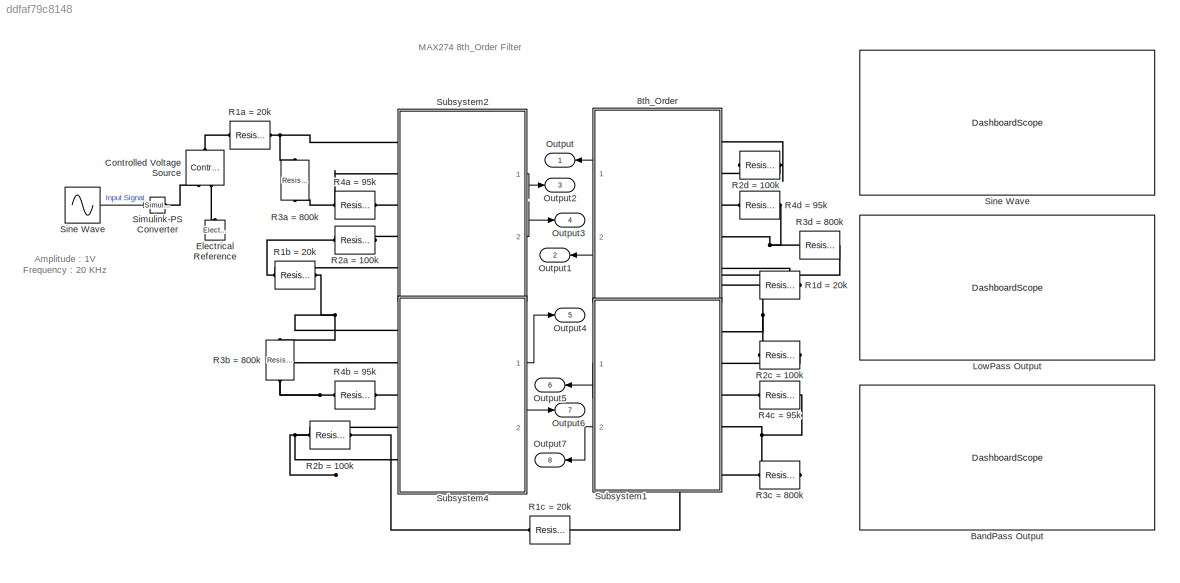
MODEL slx_ddfaf79c8148
KIND model
CONFIG AbsTol = auto
CONFIG EnableMultiTasking = off
CONFIG FixedStep = auto
CONFIG MaxStep = auto
CONFIG MinStep = auto
CONFIG RelTol = 1e-3
CONFIG SampleTimeConstraint = Unconstrained
CONFIG Solver = VariableStepAuto
CONFIG SolverName = VariableStepAuto
CONFIG StartTime = 0.0
CONFIG StopTime = 0.01
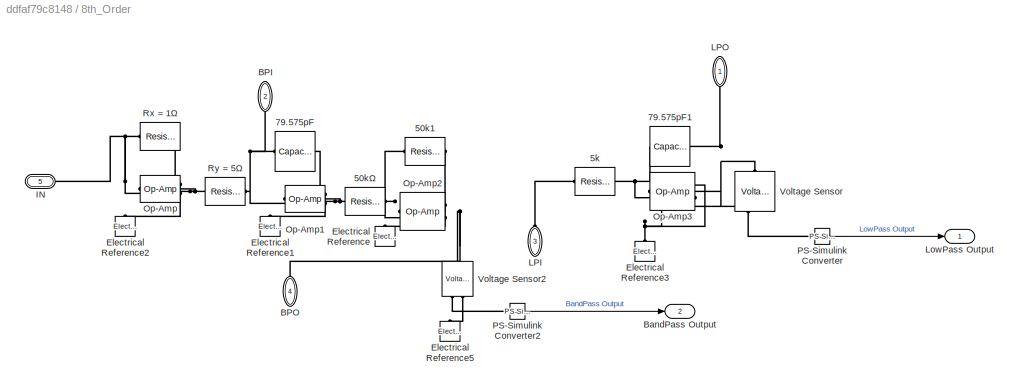
BLOCK [SubSystem] 8th_Order
  Ports = [0, 2, 0, 0, 0, 5]
  RequestExecContextInheritance = off
BLOCK [Reference] 8th_Order/50k1  REF=elec_lib/Passive Devices/Resistor
  Ports = [0, 0, 0, 0, 0, 1, 1]
  SourceBlock = elec_lib/Passive Devices/Resistor
  SourceProductBaseCode = SN
  SourceProductName = Simscape Electronics
  SourceType = Resistor
BLOCK [Reference] 8th_Order/50kΩ  REF=elec_lib/Passive Devices/Resistor
  Ports = [0, 0, 0, 0, 0, 1, 1]
  SourceBlock = elec_lib/Passive Devices/Resistor
  SourceProductBaseCode = SN
  SourceProductName = Simscape Electronics
  SourceType = Resistor
BLOCK [Reference] 8th_Order/5k  REF=elec_lib/Passive Devices/Resistor
  Ports = [0, 0, 0, 0, 0, 1, 1]
  SourceBlock = elec_lib/Passive Devices/Resistor
  SourceProductBaseCode = SN
  SourceProductName = Simscape Electronics
  SourceType = Resistor
BLOCK [Reference] 8th_Order/79.575pF  REF=elec_lib/Passive Devices/Capacitor
  Ports = [0, 0, 0, 0, 0, 1, 1]
  SourceBlock = elec_lib/Passive Devices/Capacitor
  SourceProductBaseCode = SN
  SourceProductName = Simscape Electronics
  SourceType = Capacitor
BLOCK [Reference] 8th_Order/79.575pF1  REF=elec_lib/Passive Devices/Capacitor
  Ports = [0, 0, 0, 0, 0, 1, 1]
  SourceBlock = elec_lib/Passive Devices/Capacitor
  SourceProductBaseCode = SN
  SourceProductName = Simscape Electronics
  SourceType = Capacitor
BLOCK [PMIOPort] 8th_Order/BPI
  Port = 2
  Side = Left
BLOCK [PMIOPort] 8th_Order/BPO
  Port = 4
  Side = Left
BLOCK [Outport] 8th_Order/BandPass Output
  IconDisplay = Port number
  Port = 2
BLOCK [Reference] 8th_Order/Electrical Reference  REF=fl_lib/Electrical/Electrical Elements/Electrical Reference
  Ports = [0, 0, 0, 0, 0, 1]
  SourceBlock = fl_lib/Electrical/Electrical Elements/Electrical Reference
  SourceProductBaseCode = SS
  SourceProductName = Simscape
  SourceType = Electrical Reference
BLOCK [Reference] 8th_Order/Electrical Reference1  REF=fl_lib/Electrical/Electrical Elements/Electrical Reference
  Ports = [0, 0, 0, 0, 0, 1]
  SourceBlock = fl_lib/Electrical/Electrical Elements/Electrical Reference
  SourceProductBaseCode = SS
  SourceProductName = Simscape
  SourceType = Electrical Reference
BLOCK [Reference] 8th_Order/Electrical Reference2  REF=fl_lib/Electrical/Electrical Elements/Electrical Reference
  Ports = [0, 0, 0, 0, 0, 1]
  SourceBlock = fl_lib/Electrical/Electrical Elements/Electrical Reference
  SourceProductBaseCode = SS
  SourceProductName = Simscape
  SourceType = Electrical Reference
BLOCK [Reference] 8th_Order/Electrical Reference3  REF=fl_lib/Electrical/Electrical Elements/Electrical Reference
  Ports = [0, 0, 0, 0, 0, 1]
  SourceBlock = fl_lib/Electrical/Electrical Elements/Electrical Reference
  SourceProductBaseCode = SS
  SourceProductName = Simscape
  SourceType = Electrical Reference
BLOCK [Reference] 8th_Order/Electrical Reference5  REF=fl_lib/Electrical/Electrical Elements/Electrical Reference
  Ports = [0, 0, 0, 0, 0, 1]
  SourceBlock = fl_lib/Electrical/Electrical Elements/Electrical Reference
  SourceProductBaseCode = SS
  SourceProductName = Simscape
  SourceType = Electrical Reference
BLOCK [PMIOPort] 8th_Order/IN
  Port = 5
  Side = Left
BLOCK [PMIOPort] 8th_Order/LPI
  Port = 3
  Side = Left
BLOCK [PMIOPort] 8th_Order/LPO
  Side = Left
BLOCK [Outport] 8th_Order/LowPass Output
  IconDisplay = Port number
BLOCK [Reference] 8th_Order/Op-Amp  REF=fl_lib/Electrical/Electrical Elements/Op-Amp
  Ports = [0, 0, 0, 0, 0, 2, 1]
  SourceBlock = fl_lib/Electrical/Electrical Elements/Op-Amp
  SourceProductBaseCode = SS
  SourceProductName = Simscape
  SourceType = Op-Amp
BLOCK [Reference] 8th_Order/Op-Amp1  REF=fl_lib/Electrical/Electrical Elements/Op-Amp
  Ports = [0, 0, 0, 0, 0, 2, 1]
  SourceBlock = fl_lib/Electrical/Electrical Elements/Op-Amp
  SourceProductBaseCode = SS
  SourceProductName = Simscape
  SourceType = Op-Amp
BLOCK [Reference] 8th_Order/Op-Amp2  REF=fl_lib/Electrical/Electrical Elements/Op-Amp
  Ports = [0, 0, 0, 0, 0, 2, 1]
  SourceBlock = fl_lib/Electrical/Electrical Elements/Op-Amp
  SourceProductBaseCode = SS
  SourceProductName = Simscape
  SourceType = Op-Amp
BLOCK [Reference] 8th_Order/Op-Amp3  REF=fl_lib/Electrical/Electrical Elements/Op-Amp
  Ports = [0, 0, 0, 0, 0, 2, 1]
  SourceBlock = fl_lib/Electrical/Electrical Elements/Op-Amp
  SourceProductBaseCode = SS
  SourceProductName = Simscape
  SourceType = Op-Amp
BLOCK [Reference] 8th_Order/PS-Simulink Converter  REF=nesl_utility/PS-Simulink
Converter
  Ports = [0, 1, 0, 0, 0, 1]
  SourceBlock = nesl_utility/PS-Simulink\nConverter
  SourceProductBaseCode = SS
  SourceProductName = Simscape
  SourceType = PS-Simulink\nConverter
BLOCK [Reference] 8th_Order/PS-Simulink Converter2  REF=nesl_utility/PS-Simulink
Converter
  Ports = [0, 1, 0, 0, 0, 1]
  SourceBlock = nesl_utility/PS-Simulink\nConverter
  SourceProductBaseCode = SS
  SourceProductName = Simscape
  SourceType = PS-Simulink\nConverter
BLOCK [Reference] 8th_Order/Rx = 1Ω  REF=elec_lib/Passive Devices/Resistor
  Ports = [0, 0, 0, 0, 0, 1, 1]
  SourceBlock = elec_lib/Passive Devices/Resistor
  SourceProductBaseCode = SN
  SourceProductName = Simscape Electronics
  SourceType = Resistor
BLOCK [Reference] 8th_Order/Ry = 5Ω  REF=elec_lib/Passive Devices/Resistor
  Ports = [0, 0, 0, 0, 0, 1, 1]
  SourceBlock = elec_lib/Passive Devices/Resistor
  SourceProductBaseCode = SN
  SourceProductName = Simscape Electronics
  SourceType = Resistor
BLOCK [Reference] 8th_Order/Voltage Sensor  REF=fl_lib/Electrical/Electrical Sensors/Voltage Sensor
  Ports = [0, 0, 0, 0, 0, 1, 2]
  SourceBlock = fl_lib/Electrical/Electrical Sensors/Voltage Sensor
  SourceProductBaseCode = SS
  SourceProductName = Simscape
  SourceType = Voltage Sensor
BLOCK [Reference] 8th_Order/Voltage Sensor2  REF=fl_lib/Electrical/Electrical Sensors/Voltage Sensor
  Ports = [0, 0, 0, 0, 0, 1, 2]
  SourceBlock = fl_lib/Electrical/Electrical Sensors/Voltage Sensor
  SourceProductBaseCode = SS
  SourceProductName = Simscape
  SourceType = Voltage Sensor
BLOCK [DashboardScope] BandPass Output
  WebBlockId = 606
BLOCK [Reference] Controlled Voltage Source  REF=fl_lib/Electrical/Electrical Sources/Controlled Voltage
Source
  Ports = [0, 0, 0, 0, 0, 1, 2]
  SourceBlock = fl_lib/Electrical/Electrical Sources/Controlled Voltage\nSource
  SourceProductBaseCode = SS
  SourceProductName = Simscape
  SourceType = Controlled Voltage\nSource
BLOCK [Reference] Electrical Reference  REF=fl_lib/Electrical/Electrical Elements/Electrical Reference
  Ports = [0, 0, 0, 0, 0, 1]
  SourceBlock = fl_lib/Electrical/Electrical Elements/Electrical Reference
  SourceProductBaseCode = SS
  SourceProductName = Simscape
  SourceType = Electrical Reference
BLOCK [DashboardScope] LowPass Output
  WebBlockId = 605
BLOCK [Outport] Output
  IconDisplay = Port number
BLOCK [Outport] Output1
  IconDisplay = Port number
  Port = 2
BLOCK [Outport] Output2
  IconDisplay = Port number
  Port = 3
BLOCK [Outport] Output3
  IconDisplay = Port number
  Port = 4
BLOCK [Outport] Output4
  IconDisplay = Port number
  Port = 5
BLOCK [Outport] Output5
  IconDisplay = Port number
  Port = 6
BLOCK [Outport] Output6
  IconDisplay = Port number
  Port = 7
BLOCK [Outport] Output7
  IconDisplay = Port number
  Port = 8
BLOCK [Reference] R1a = 20k  REF=elec_lib/Passive Devices/Resistor
  Ports = [0, 0, 0, 0, 0, 1, 1]
  SourceBlock = elec_lib/Passive Devices/Resistor
  SourceProductBaseCode = SN
  SourceProductName = Simscape Electronics
  SourceType = Resistor
BLOCK [Reference] R1b = 20k  REF=elec_lib/Passive Devices/Resistor
  Ports = [0, 0, 0, 0, 0, 1, 1]
  SourceBlock = elec_lib/Passive Devices/Resistor
  SourceProductBaseCode = SN
  SourceProductName = Simscape Electronics
  SourceType = Resistor
BLOCK [Reference] R1c = 20k  REF=elec_lib/Passive Devices/Resistor
  Ports = [0, 0, 0, 0, 0, 1, 1]
  SourceBlock = elec_lib/Passive Devices/Resistor
  SourceProductBaseCode = SN
  SourceProductName = Simscape Electronics
  SourceType = Resistor
BLOCK [Reference] R1d = 20k  REF=elec_lib/Passive Devices/Resistor
  Ports = [0, 0, 0, 0, 0, 1, 1]
  SourceBlock = elec_lib/Passive Devices/Resistor
  SourceProductBaseCode = SN
  SourceProductName = Simscape Electronics
  SourceType = Resistor
BLOCK [Reference] R2a = 100k  REF=elec_lib/Passive Devices/Resistor
  Ports = [0, 0, 0, 0, 0, 1, 1]
  SourceBlock = elec_lib/Passive Devices/Resistor
  SourceProductBaseCode = SN
  SourceProductName = Simscape Electronics
  SourceType = Resistor
BLOCK [Reference] R2b = 100k  REF=elec_lib/Passive Devices/Resistor
  Ports = [0, 0, 0, 0, 0, 1, 1]
  SourceBlock = elec_lib/Passive Devices/Resistor
  SourceProductBaseCode = SN
  SourceProductName = Simscape Electronics
  SourceType = Resistor
BLOCK [Reference] R2c = 100k  REF=elec_lib/Passive Devices/Resistor
  Ports = [0, 0, 0, 0, 0, 1, 1]
  SourceBlock = elec_lib/Passive Devices/Resistor
  SourceProductBaseCode = SN
  SourceProductName = Simscape Electronics
  SourceType = Resistor
BLOCK [Reference] R2d = 100k  REF=elec_lib/Passive Devices/Resistor
  Ports = [0, 0, 0, 0, 0, 1, 1]
  SourceBlock = elec_lib/Passive Devices/Resistor
  SourceProductBaseCode = SN
  SourceProductName = Simscape Electronics
  SourceType = Resistor
BLOCK [Reference] R3a = 800k  REF=elec_lib/Passive Devices/Resistor
  Ports = [0, 0, 0, 0, 0, 1, 1]
  SourceBlock = elec_lib/Passive Devices/Resistor
  SourceProductBaseCode = SN
  SourceProductName = Simscape Electronics
  SourceType = Resistor
BLOCK [Reference] R3b = 800k  REF=elec_lib/Passive Devices/Resistor
  Ports = [0, 0, 0, 0, 0, 1, 1]
  SourceBlock = elec_lib/Passive Devices/Resistor
  SourceProductBaseCode = SN
  SourceProductName = Simscape Electronics
  SourceType = Resistor
BLOCK [Reference] R3c = 800k  REF=elec_lib/Passive Devices/Resistor
  Ports = [0, 0, 0, 0, 0, 1, 1]
  SourceBlock = elec_lib/Passive Devices/Resistor
  SourceProductBaseCode = SN
  SourceProductName = Simscape Electronics
  SourceType = Resistor
BLOCK [Reference] R3d = 800k  REF=elec_lib/Passive Devices/Resistor
  Ports = [0, 0, 0, 0, 0, 1, 1]
  SourceBlock = elec_lib/Passive Devices/Resistor
  SourceProductBaseCode = SN
  SourceProductName = Simscape Electronics
  SourceType = Resistor
BLOCK [Reference] R4a = 95k  REF=elec_lib/Passive Devices/Resistor
  Ports = [0, 0, 0, 0, 0, 1, 1]
  SourceBlock = elec_lib/Passive Devices/Resistor
  SourceProductBaseCode = SN
  SourceProductName = Simscape Electronics
  SourceType = Resistor
BLOCK [Reference] R4b = 95k  REF=elec_lib/Passive Devices/Resistor
  Ports = [0, 0, 0, 0, 0, 1, 1]
  SourceBlock = elec_lib/Passive Devices/Resistor
  SourceProductBaseCode = SN
  SourceProductName = Simscape Electronics
  SourceType = Resistor
BLOCK [Reference] R4c = 95k  REF=elec_lib/Passive Devices/Resistor
  Ports = [0, 0, 0, 0, 0, 1, 1]
  SourceBlock = elec_lib/Passive Devices/Resistor
  SourceProductBaseCode = SN
  SourceProductName = Simscape Electronics
  SourceType = Resistor
BLOCK [Reference] R4d = 95k  REF=elec_lib/Passive Devices/Resistor
  Ports = [0, 0, 0, 0, 0, 1, 1]
  SourceBlock = elec_lib/Passive Devices/Resistor
  SourceProductBaseCode = SN
  SourceProductName = Simscape Electronics
  SourceType = Resistor
BLOCK [Reference] Simulink-PS Converter  REF=nesl_utility/Simulink-PS
Converter
  Ports = [1, 0, 0, 0, 0, 0, 1]
  SourceBlock = nesl_utility/Simulink-PS\nConverter
  SourceProductBaseCode = SS
  SourceProductName = Simscape
  SourceType = Simulink-PS\nConverter
BLOCK [DashboardScope] Sine Wave
  WebBlockId = 604
BLOCK [Sin] Sine Wave 
  Frequency = 2*pi*20e3
  Ports = [0, 1]
  SampleTime = 0
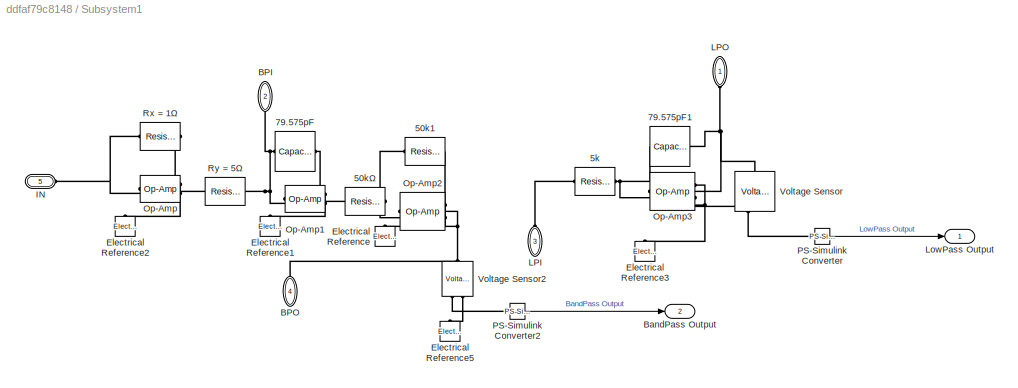
BLOCK [SubSystem] Subsystem1
  Ports = [0, 2, 0, 0, 0, 5]
  RequestExecContextInheritance = off
BLOCK [Reference] Subsystem1/50k1  REF=elec_lib/Passive Devices/Resistor
  Ports = [0, 0, 0, 0, 0, 1, 1]
  SourceBlock = elec_lib/Passive Devices/Resistor
  SourceProductBaseCode = SN
  SourceProductName = Simscape Electronics
  SourceType = Resistor
BLOCK [Reference] Subsystem1/50kΩ  REF=elec_lib/Passive Devices/Resistor
  Ports = [0, 0, 0, 0, 0, 1, 1]
  SourceBlock = elec_lib/Passive Devices/Resistor
  SourceProductBaseCode = SN
  SourceProductName = Simscape Electronics
  SourceType = Resistor
BLOCK [Reference] Subsystem1/5k  REF=elec_lib/Passive Devices/Resistor
  Ports = [0, 0, 0, 0, 0, 1, 1]
  SourceBlock = elec_lib/Passive Devices/Resistor
  SourceProductBaseCode = SN
  SourceProductName = Simscape Electronics
  SourceType = Resistor
BLOCK [Reference] Subsystem1/79.575pF  REF=elec_lib/Passive Devices/Capacitor
  Ports = [0, 0, 0, 0, 0, 1, 1]
  SourceBlock = elec_lib/Passive Devices/Capacitor
  SourceProductBaseCode = SN
  SourceProductName = Simscape Electronics
  SourceType = Capacitor
BLOCK [Reference] Subsystem1/79.575pF1  REF=elec_lib/Passive Devices/Capacitor
  Ports = [0, 0, 0, 0, 0, 1, 1]
  SourceBlock = elec_lib/Passive Devices/Capacitor
  SourceProductBaseCode = SN
  SourceProductName = Simscape Electronics
  SourceType = Capacitor
BLOCK [PMIOPort] Subsystem1/BPI
  Port = 2
  Side = Left
BLOCK [PMIOPort] Subsystem1/BPO
  Port = 4
  Side = Left
BLOCK [Outport] Subsystem1/BandPass Output
  IconDisplay = Port number
  Port = 2
BLOCK [Reference] Subsystem1/Electrical Reference  REF=fl_lib/Electrical/Electrical Elements/Electrical Reference
  Ports = [0, 0, 0, 0, 0, 1]
  SourceBlock = fl_lib/Electrical/Electrical Elements/Electrical Reference
  SourceProductBaseCode = SS
  SourceProductName = Simscape
  SourceType = Electrical Reference
BLOCK [Reference] Subsystem1/Electrical Reference1  REF=fl_lib/Electrical/Electrical Elements/Electrical Reference
  Ports = [0, 0, 0, 0, 0, 1]
  SourceBlock = fl_lib/Electrical/Electrical Elements/Electrical Reference
  SourceProductBaseCode = SS
  SourceProductName = Simscape
  SourceType = Electrical Reference
BLOCK [Reference] Subsystem1/Electrical Reference2  REF=fl_lib/Electrical/Electrical Elements/Electrical Reference
  Ports = [0, 0, 0, 0, 0, 1]
  SourceBlock = fl_lib/Electrical/Electrical Elements/Electrical Reference
  SourceProductBaseCode = SS
  SourceProductName = Simscape
  SourceType = Electrical Reference
BLOCK [Reference] Subsystem1/Electrical Reference3  REF=fl_lib/Electrical/Electrical Elements/Electrical Reference
  Ports = [0, 0, 0, 0, 0, 1]
  SourceBlock = fl_lib/Electrical/Electrical Elements/Electrical Reference
  SourceProductBaseCode = SS
  SourceProductName = Simscape
  SourceType = Electrical Reference
BLOCK [Reference] Subsystem1/Electrical Reference5  REF=fl_lib/Electrical/Electrical Elements/Electrical Reference
  Ports = [0, 0, 0, 0, 0, 1]
  SourceBlock = fl_lib/Electrical/Electrical Elements/Electrical Reference
  SourceProductBaseCode = SS
  SourceProductName = Simscape
  SourceType = Electrical Reference
BLOCK [PMIOPort] Subsystem1/IN
  Port = 5
  Side = Left
BLOCK [PMIOPort] Subsystem1/LPI
  Port = 3
  Side = Left
BLOCK [PMIOPort] Subsystem1/LPO
  Side = Left
BLOCK [Outport] Subsystem1/LowPass Output
  IconDisplay = Port number
BLOCK [Reference] Subsystem1/Op-Amp  REF=fl_lib/Electrical/Electrical Elements/Op-Amp
  Ports = [0, 0, 0, 0, 0, 2, 1]
  SourceBlock = fl_lib/Electrical/Electrical Elements/Op-Amp
  SourceProductBaseCode = SS
  SourceProductName = Simscape
  SourceType = Op-Amp
BLOCK [Reference] Subsystem1/Op-Amp1  REF=fl_lib/Electrical/Electrical Elements/Op-Amp
  Ports = [0, 0, 0, 0, 0, 2, 1]
  SourceBlock = fl_lib/Electrical/Electrical Elements/Op-Amp
  SourceProductBaseCode = SS
  SourceProductName = Simscape
  SourceType = Op-Amp
BLOCK [Reference] Subsystem1/Op-Amp2  REF=fl_lib/Electrical/Electrical Elements/Op-Amp
  Ports = [0, 0, 0, 0, 0, 2, 1]
  SourceBlock = fl_lib/Electrical/Electrical Elements/Op-Amp
  SourceProductBaseCode = SS
  SourceProductName = Simscape
  SourceType = Op-Amp
BLOCK [Reference] Subsystem1/Op-Amp3  REF=fl_lib/Electrical/Electrical Elements/Op-Amp
  Ports = [0, 0, 0, 0, 0, 2, 1]
  SourceBlock = fl_lib/Electrical/Electrical Elements/Op-Amp
  SourceProductBaseCode = SS
  SourceProductName = Simscape
  SourceType = Op-Amp
BLOCK [Reference] Subsystem1/PS-Simulink Converter  REF=nesl_utility/PS-Simulink
Converter
  Ports = [0, 1, 0, 0, 0, 1]
  SourceBlock = nesl_utility/PS-Simulink\nConverter
  SourceProductBaseCode = SS
  SourceProductName = Simscape
  SourceType = PS-Simulink\nConverter
BLOCK [Reference] Subsystem1/PS-Simulink Converter2  REF=nesl_utility/PS-Simulink
Converter
  Ports = [0, 1, 0, 0, 0, 1]
  SourceBlock = nesl_utility/PS-Simulink\nConverter
  SourceProductBaseCode = SS
  SourceProductName = Simscape
  SourceType = PS-Simulink\nConverter
BLOCK [Reference] Subsystem1/Rx = 1Ω  REF=elec_lib/Passive Devices/Resistor
  Ports = [0, 0, 0, 0, 0, 1, 1]
  SourceBlock = elec_lib/Passive Devices/Resistor
  SourceProductBaseCode = SN
  SourceProductName = Simscape Electronics
  SourceType = Resistor
BLOCK [Reference] Subsystem1/Ry = 5Ω  REF=elec_lib/Passive Devices/Resistor
  Ports = [0, 0, 0, 0, 0, 1, 1]
  SourceBlock = elec_lib/Passive Devices/Resistor
  SourceProductBaseCode = SN
  SourceProductName = Simscape Electronics
  SourceType = Resistor
BLOCK [Reference] Subsystem1/Voltage Sensor  REF=fl_lib/Electrical/Electrical Sensors/Voltage Sensor
  Ports = [0, 0, 0, 0, 0, 1, 2]
  SourceBlock = fl_lib/Electrical/Electrical Sensors/Voltage Sensor
  SourceProductBaseCode = SS
  SourceProductName = Simscape
  SourceType = Voltage Sensor
BLOCK [Reference] Subsystem1/Voltage Sensor2  REF=fl_lib/Electrical/Electrical Sensors/Voltage Sensor
  Ports = [0, 0, 0, 0, 0, 1, 2]
  SourceBlock = fl_lib/Electrical/Electrical Sensors/Voltage Sensor
  SourceProductBaseCode = SS
  SourceProductName = Simscape
  SourceType = Voltage Sensor
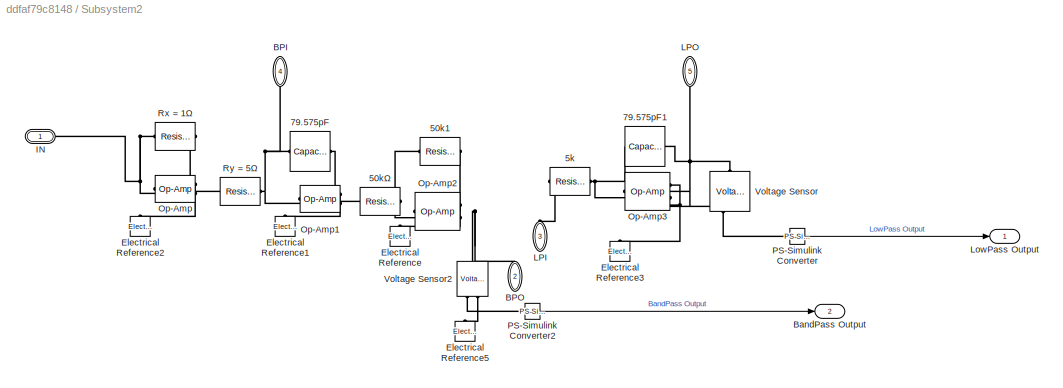
BLOCK [SubSystem] Subsystem2
  Ports = [0, 2, 0, 0, 0, 5]
  RequestExecContextInheritance = off
BLOCK [Reference] Subsystem2/50k1  REF=elec_lib/Passive Devices/Resistor
  Ports = [0, 0, 0, 0, 0, 1, 1]
  SourceBlock = elec_lib/Passive Devices/Resistor
  SourceProductBaseCode = SN
  SourceProductName = Simscape Electronics
  SourceType = Resistor
BLOCK [Reference] Subsystem2/50kΩ  REF=elec_lib/Passive Devices/Resistor
  Ports = [0, 0, 0, 0, 0, 1, 1]
  SourceBlock = elec_lib/Passive Devices/Resistor
  SourceProductBaseCode = SN
  SourceProductName = Simscape Electronics
  SourceType = Resistor
BLOCK [Reference] Subsystem2/5k  REF=elec_lib/Passive Devices/Resistor
  Ports = [0, 0, 0, 0, 0, 1, 1]
  SourceBlock = elec_lib/Passive Devices/Resistor
  SourceProductBaseCode = SN
  SourceProductName = Simscape Electronics
  SourceType = Resistor
BLOCK [Reference] Subsystem2/79.575pF  REF=elec_lib/Passive Devices/Capacitor
  Ports = [0, 0, 0, 0, 0, 1, 1]
  SourceBlock = elec_lib/Passive Devices/Capacitor
  SourceProductBaseCode = SN
  SourceProductName = Simscape Electronics
  SourceType = Capacitor
BLOCK [Reference] Subsystem2/79.575pF1  REF=elec_lib/Passive Devices/Capacitor
  Ports = [0, 0, 0, 0, 0, 1, 1]
  SourceBlock = elec_lib/Passive Devices/Capacitor
  SourceProductBaseCode = SN
  SourceProductName = Simscape Electronics
  SourceType = Capacitor
BLOCK [PMIOPort] Subsystem2/BPI
  Port = 4
  Side = Left
BLOCK [PMIOPort] Subsystem2/BPO
  Port = 2
  Side = Left
BLOCK [Outport] Subsystem2/BandPass Output
  IconDisplay = Port number
  Port = 2
BLOCK [Reference] Subsystem2/Electrical Reference  REF=fl_lib/Electrical/Electrical Elements/Electrical Reference
  Ports = [0, 0, 0, 0, 0, 1]
  SourceBlock = fl_lib/Electrical/Electrical Elements/Electrical Reference
  SourceProductBaseCode = SS
  SourceProductName = Simscape
  SourceType = Electrical Reference
BLOCK [Reference] Subsystem2/Electrical Reference1  REF=fl_lib/Electrical/Electrical Elements/Electrical Reference
  Ports = [0, 0, 0, 0, 0, 1]
  SourceBlock = fl_lib/Electrical/Electrical Elements/Electrical Reference
  SourceProductBaseCode = SS
  SourceProductName = Simscape
  SourceType = Electrical Reference
BLOCK [Reference] Subsystem2/Electrical Reference2  REF=fl_lib/Electrical/Electrical Elements/Electrical Reference
  Ports = [0, 0, 0, 0, 0, 1]
  SourceBlock = fl_lib/Electrical/Electrical Elements/Electrical Reference
  SourceProductBaseCode = SS
  SourceProductName = Simscape
  SourceType = Electrical Reference
BLOCK [Reference] Subsystem2/Electrical Reference3  REF=fl_lib/Electrical/Electrical Elements/Electrical Reference
  Ports = [0, 0, 0, 0, 0, 1]
  SourceBlock = fl_lib/Electrical/Electrical Elements/Electrical Reference
  SourceProductBaseCode = SS
  SourceProductName = Simscape
  SourceType = Electrical Reference
BLOCK [Reference] Subsystem2/Electrical Reference5  REF=fl_lib/Electrical/Electrical Elements/Electrical Reference
  Ports = [0, 0, 0, 0, 0, 1]
  SourceBlock = fl_lib/Electrical/Electrical Elements/Electrical Reference
  SourceProductBaseCode = SS
  SourceProductName = Simscape
  SourceType = Electrical Reference
BLOCK [PMIOPort] Subsystem2/IN
  Side = Left
BLOCK [PMIOPort] Subsystem2/LPI
  Port = 3
  Side = Left
BLOCK [PMIOPort] Subsystem2/LPO
  Port = 5
  Side = Left
BLOCK [Outport] Subsystem2/LowPass Output
  IconDisplay = Port number
BLOCK [Reference] Subsystem2/Op-Amp  REF=fl_lib/Electrical/Electrical Elements/Op-Amp
  Ports = [0, 0, 0, 0, 0, 2, 1]
  SourceBlock = fl_lib/Electrical/Electrical Elements/Op-Amp
  SourceProductBaseCode = SS
  SourceProductName = Simscape
  SourceType = Op-Amp
BLOCK [Reference] Subsystem2/Op-Amp1  REF=fl_lib/Electrical/Electrical Elements/Op-Amp
  Ports = [0, 0, 0, 0, 0, 2, 1]
  SourceBlock = fl_lib/Electrical/Electrical Elements/Op-Amp
  SourceProductBaseCode = SS
  SourceProductName = Simscape
  SourceType = Op-Amp
BLOCK [Reference] Subsystem2/Op-Amp2  REF=fl_lib/Electrical/Electrical Elements/Op-Amp
  Ports = [0, 0, 0, 0, 0, 2, 1]
  SourceBlock = fl_lib/Electrical/Electrical Elements/Op-Amp
  SourceProductBaseCode = SS
  SourceProductName = Simscape
  SourceType = Op-Amp
BLOCK [Reference] Subsystem2/Op-Amp3  REF=fl_lib/Electrical/Electrical Elements/Op-Amp
  Ports = [0, 0, 0, 0, 0, 2, 1]
  SourceBlock = fl_lib/Electrical/Electrical Elements/Op-Amp
  SourceProductBaseCode = SS
  SourceProductName = Simscape
  SourceType = Op-Amp
BLOCK [Reference] Subsystem2/PS-Simulink Converter  REF=nesl_utility/PS-Simulink
Converter
  Ports = [0, 1, 0, 0, 0, 1]
  SourceBlock = nesl_utility/PS-Simulink\nConverter
  SourceProductBaseCode = SS
  SourceProductName = Simscape
  SourceType = PS-Simulink\nConverter
BLOCK [Reference] Subsystem2/PS-Simulink Converter2  REF=nesl_utility/PS-Simulink
Converter
  Ports = [0, 1, 0, 0, 0, 1]
  SourceBlock = nesl_utility/PS-Simulink\nConverter
  SourceProductBaseCode = SS
  SourceProductName = Simscape
  SourceType = PS-Simulink\nConverter
BLOCK [Reference] Subsystem2/Rx = 1Ω  REF=elec_lib/Passive Devices/Resistor
  Ports = [0, 0, 0, 0, 0, 1, 1]
  SourceBlock = elec_lib/Passive Devices/Resistor
  SourceProductBaseCode = SN
  SourceProductName = Simscape Electronics
  SourceType = Resistor
BLOCK [Reference] Subsystem2/Ry = 5Ω  REF=elec_lib/Passive Devices/Resistor
  Ports = [0, 0, 0, 0, 0, 1, 1]
  SourceBlock = elec_lib/Passive Devices/Resistor
  SourceProductBaseCode = SN
  SourceProductName = Simscape Electronics
  SourceType = Resistor
BLOCK [Reference] Subsystem2/Voltage Sensor  REF=fl_lib/Electrical/Electrical Sensors/Voltage Sensor
  Ports = [0, 0, 0, 0, 0, 1, 2]
  SourceBlock = fl_lib/Electrical/Electrical Sensors/Voltage Sensor
  SourceProductBaseCode = SS
  SourceProductName = Simscape
  SourceType = Voltage Sensor
BLOCK [Reference] Subsystem2/Voltage Sensor2  REF=fl_lib/Electrical/Electrical Sensors/Voltage Sensor
  Ports = [0, 0, 0, 0, 0, 1, 2]
  SourceBlock = fl_lib/Electrical/Electrical Sensors/Voltage Sensor
  SourceProductBaseCode = SS
  SourceProductName = Simscape
  SourceType = Voltage Sensor
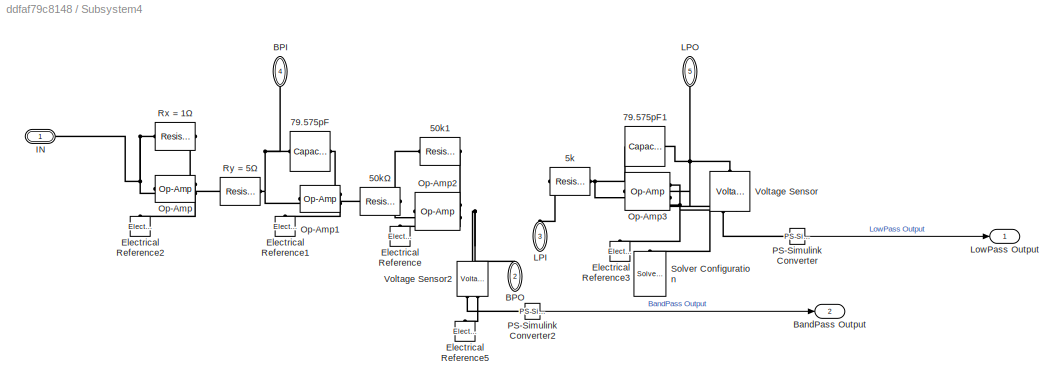
BLOCK [SubSystem] Subsystem4
  Ports = [0, 2, 0, 0, 0, 5]
  RequestExecContextInheritance = off
BLOCK [Reference] Subsystem4/50k1  REF=elec_lib/Passive Devices/Resistor
  Ports = [0, 0, 0, 0, 0, 1, 1]
  SourceBlock = elec_lib/Passive Devices/Resistor
  SourceProductBaseCode = SN
  SourceProductName = Simscape Electronics
  SourceType = Resistor
BLOCK [Reference] Subsystem4/50kΩ  REF=elec_lib/Passive Devices/Resistor
  Ports = [0, 0, 0, 0, 0, 1, 1]
  SourceBlock = elec_lib/Passive Devices/Resistor
  SourceProductBaseCode = SN
  SourceProductName = Simscape Electronics
  SourceType = Resistor
BLOCK [Reference] Subsystem4/5k  REF=elec_lib/Passive Devices/Resistor
  Ports = [0, 0, 0, 0, 0, 1, 1]
  SourceBlock = elec_lib/Passive Devices/Resistor
  SourceProductBaseCode = SN
  SourceProductName = Simscape Electronics
  SourceType = Resistor
BLOCK [Reference] Subsystem4/79.575pF  REF=elec_lib/Passive Devices/Capacitor
  Ports = [0, 0, 0, 0, 0, 1, 1]
  SourceBlock = elec_lib/Passive Devices/Capacitor
  SourceProductBaseCode = SN
  SourceProductName = Simscape Electronics
  SourceType = Capacitor
BLOCK [Reference] Subsystem4/79.575pF1  REF=elec_lib/Passive Devices/Capacitor
  Ports = [0, 0, 0, 0, 0, 1, 1]
  SourceBlock = elec_lib/Passive Devices/Capacitor
  SourceProductBaseCode = SN
  SourceProductName = Simscape Electronics
  SourceType = Capacitor
BLOCK [PMIOPort] Subsystem4/BPI
  Port = 4
  Side = Left
BLOCK [PMIOPort] Subsystem4/BPO
  Port = 2
  Side = Left
BLOCK [Outport] Subsystem4/BandPass Output
  IconDisplay = Port number
  Port = 2
BLOCK [Reference] Subsystem4/Electrical Reference  REF=fl_lib/Electrical/Electrical Elements/Electrical Reference
  Ports = [0, 0, 0, 0, 0, 1]
  SourceBlock = fl_lib/Electrical/Electrical Elements/Electrical Reference
  SourceProductBaseCode = SS
  SourceProductName = Simscape
  SourceType = Electrical Reference
BLOCK [Reference] Subsystem4/Electrical Reference1  REF=fl_lib/Electrical/Electrical Elements/Electrical Reference
  Ports = [0, 0, 0, 0, 0, 1]
  SourceBlock = fl_lib/Electrical/Electrical Elements/Electrical Reference
  SourceProductBaseCode = SS
  SourceProductName = Simscape
  SourceType = Electrical Reference
BLOCK [Reference] Subsystem4/Electrical Reference2  REF=fl_lib/Electrical/Electrical Elements/Electrical Reference
  Ports = [0, 0, 0, 0, 0, 1]
  SourceBlock = fl_lib/Electrical/Electrical Elements/Electrical Reference
  SourceProductBaseCode = SS
  SourceProductName = Simscape
  SourceType = Electrical Reference
BLOCK [Reference] Subsystem4/Electrical Reference3  REF=fl_lib/Electrical/Electrical Elements/Electrical Reference
  Ports = [0, 0, 0, 0, 0, 1]
  SourceBlock = fl_lib/Electrical/Electrical Elements/Electrical Reference
  SourceProductBaseCode = SS
  SourceProductName = Simscape
  SourceType = Electrical Reference
BLOCK [Reference] Subsystem4/Electrical Reference5  REF=fl_lib/Electrical/Electrical Elements/Electrical Reference
  Ports = [0, 0, 0, 0, 0, 1]
  SourceBlock = fl_lib/Electrical/Electrical Elements/Electrical Reference
  SourceProductBaseCode = SS
  SourceProductName = Simscape
  SourceType = Electrical Reference
BLOCK [PMIOPort] Subsystem4/IN
  Side = Left
BLOCK [PMIOPort] Subsystem4/LPI
  Port = 3
  Side = Left
BLOCK [PMIOPort] Subsystem4/LPO
  Port = 5
  Side = Left
BLOCK [Outport] Subsystem4/LowPass Output
  IconDisplay = Port number
BLOCK [Reference] Subsystem4/Op-Amp  REF=fl_lib/Electrical/Electrical Elements/Op-Amp
  Ports = [0, 0, 0, 0, 0, 2, 1]
  SourceBlock = fl_lib/Electrical/Electrical Elements/Op-Amp
  SourceProductBaseCode = SS
  SourceProductName = Simscape
  SourceType = Op-Amp
BLOCK [Reference] Subsystem4/Op-Amp1  REF=fl_lib/Electrical/Electrical Elements/Op-Amp
  Ports = [0, 0, 0, 0, 0, 2, 1]
  SourceBlock = fl_lib/Electrical/Electrical Elements/Op-Amp
  SourceProductBaseCode = SS
  SourceProductName = Simscape
  SourceType = Op-Amp
BLOCK [Reference] Subsystem4/Op-Amp2  REF=fl_lib/Electrical/Electrical Elements/Op-Amp
  Ports = [0, 0, 0, 0, 0, 2, 1]
  SourceBlock = fl_lib/Electrical/Electrical Elements/Op-Amp
  SourceProductBaseCode = SS
  SourceProductName = Simscape
  SourceType = Op-Amp
BLOCK [Reference] Subsystem4/Op-Amp3  REF=fl_lib/Electrical/Electrical Elements/Op-Amp
  Ports = [0, 0, 0, 0, 0, 2, 1]
  SourceBlock = fl_lib/Electrical/Electrical Elements/Op-Amp
  SourceProductBaseCode = SS
  SourceProductName = Simscape
  SourceType = Op-Amp
BLOCK [Reference] Subsystem4/PS-Simulink Converter  REF=nesl_utility/PS-Simulink
Converter
  Ports = [0, 1, 0, 0, 0, 1]
  SourceBlock = nesl_utility/PS-Simulink\nConverter
  SourceProductBaseCode = SS
  SourceProductName = Simscape
  SourceType = PS-Simulink\nConverter
BLOCK [Reference] Subsystem4/PS-Simulink Converter2  REF=nesl_utility/PS-Simulink
Converter
  Ports = [0, 1, 0, 0, 0, 1]
  SourceBlock = nesl_utility/PS-Simulink\nConverter
  SourceProductBaseCode = SS
  SourceProductName = Simscape
  SourceType = PS-Simulink\nConverter
BLOCK [Reference] Subsystem4/Rx = 1Ω  REF=elec_lib/Passive Devices/Resistor
  Ports = [0, 0, 0, 0, 0, 1, 1]
  SourceBlock = elec_lib/Passive Devices/Resistor
  SourceProductBaseCode = SN
  SourceProductName = Simscape Electronics
  SourceType = Resistor
BLOCK [Reference] Subsystem4/Ry = 5Ω  REF=elec_lib/Passive Devices/Resistor
  Ports = [0, 0, 0, 0, 0, 1, 1]
  SourceBlock = elec_lib/Passive Devices/Resistor
  SourceProductBaseCode = SN
  SourceProductName = Simscape Electronics
  SourceType = Resistor
BLOCK [Reference] Subsystem4/Solver Configuration  REF=nesl_utility/Solver
Configuration
  Ports = [0, 0, 0, 0, 0, 0, 1]
  SourceBlock = nesl_utility/Solver\nConfiguration
  SourceProductBaseCode = SS
  SourceProductName = Simscape
  SourceType = Solver\nConfiguration
BLOCK [Reference] Subsystem4/Voltage Sensor  REF=fl_lib/Electrical/Electrical Sensors/Voltage Sensor
  Ports = [0, 0, 0, 0, 0, 1, 2]
  SourceBlock = fl_lib/Electrical/Electrical Sensors/Voltage Sensor
  SourceProductBaseCode = SS
  SourceProductName = Simscape
  SourceType = Voltage Sensor
BLOCK [Reference] Subsystem4/Voltage Sensor2  REF=fl_lib/Electrical/Electrical Sensors/Voltage Sensor
  Ports = [0, 0, 0, 0, 0, 1, 2]
  SourceBlock = fl_lib/Electrical/Electrical Sensors/Voltage Sensor
  SourceProductBaseCode = SS
  SourceProductName = Simscape
  SourceType = Voltage Sensor
ANNOTATION (root): MAX274 8th_Order Filter
ANNOTATION (root): Amplitude : 1V Frequency : 20 KHz
LINE 8th_Order/PS-Simulink Converter2:1 -> 8th_Order/BandPass Output:1
LINE 8th_Order/PS-Simulink Converter:1 -> 8th_Order/LowPass Output:1
LINE 8th_Order:1 -> Output:1
LINE 8th_Order:2 -> Output1:1
LINE Sine Wave :1 -> Simulink-PS Converter:1
LINE Subsystem1/PS-Simulink Converter2:1 -> Subsystem1/BandPass Output:1
LINE Subsystem1/PS-Simulink Converter:1 -> Subsystem1/LowPass Output:1
LINE Subsystem1:1 -> Output5:1
LINE Subsystem1:2 -> Output7:1
LINE Subsystem2/PS-Simulink Converter2:1 -> Subsystem2/BandPass Output:1
LINE Subsystem2/PS-Simulink Converter:1 -> Subsystem2/LowPass Output:1
LINE Subsystem2:1 -> Output2:1
LINE Subsystem2:2 -> Output3:1
LINE Subsystem4/PS-Simulink Converter2:1 -> Subsystem4/BandPass Output:1
LINE Subsystem4/PS-Simulink Converter:1 -> Subsystem4/LowPass Output:1
LINE Subsystem4:1 -> Output4:1
LINE Subsystem4:2 -> Output6:1
PNET net1: 8th_Order/50k1:LConn1 -- 8th_Order/50kΩ:RConn1 -- 8th_Order/Op-Amp2:LConn2
PNET net2: 8th_Order/50k1:RConn1 -- 8th_Order/BPO:RConn1 -- 8th_Order/Op-Amp2:RConn1 -- 8th_Order/Voltage Sensor2:LConn1
PNET net3: 8th_Order/50kΩ:LConn1 -- 8th_Order/79.575pF:RConn1 -- 8th_Order/Op-Amp1:RConn1
PLINE 8th_Order/5k:LConn1 -- 8th_Order/LPI:RConn1
PNET net4: 8th_Order/5k:RConn1 -- 8th_Order/79.575pF1:LConn1 -- 8th_Order/Op-Amp3:LConn2
PNET net5: 8th_Order/79.575pF1:RConn1 -- 8th_Order/LPO:RConn1 -- 8th_Order/Op-Amp3:RConn1 -- 8th_Order/Voltage Sensor:LConn1
PNET net6: 8th_Order/79.575pF:LConn1 -- 8th_Order/BPI:RConn1 -- 8th_Order/Op-Amp1:LConn2 -- 8th_Order/Ry = 5Ω:RConn1
PLINE 8th_Order/Electrical Reference1:LConn1 -- 8th_Order/Op-Amp1:LConn1
PLINE 8th_Order/Electrical Reference2:LConn1 -- 8th_Order/Op-Amp:LConn1
PNET net7: 8th_Order/Electrical Reference3:LConn1 -- 8th_Order/Op-Amp3:LConn1 -- 8th_Order/Voltage Sensor:RConn2
PLINE 8th_Order/Electrical Reference5:LConn1 -- 8th_Order/Voltage Sensor2:RConn2
PLINE 8th_Order/Electrical Reference:LConn1 -- 8th_Order/Op-Amp2:LConn1
PNET net8: 8th_Order/IN:RConn1 -- 8th_Order/Op-Amp:LConn2 -- 8th_Order/Rx = 1Ω:LConn1
PNET net9: 8th_Order/Op-Amp:RConn1 -- 8th_Order/Rx = 1Ω:RConn1 -- 8th_Order/Ry = 5Ω:LConn1
PLINE 8th_Order/PS-Simulink Converter2:LConn1 -- 8th_Order/Voltage Sensor2:RConn1
PLINE 8th_Order/PS-Simulink Converter:LConn1 -- 8th_Order/Voltage Sensor:RConn1
PLINE 8th_Order:LConn1 -- R2d = 100k:LConn1
PLINE 8th_Order:LConn2 -- R2d = 100k:RConn1
PLINE 8th_Order:LConn3 -- R4d = 95k:LConn1
PNET net10: 8th_Order:LConn4 -- R3d = 800k:LConn1 -- R4d = 95k:RConn1
PNET net11: 8th_Order:LConn5 -- R1d = 20k:RConn1 -- R3d = 800k:RConn1
PLINE Controlled Voltage Source:LConn1 -- R1a = 20k:LConn1
PLINE Controlled Voltage Source:RConn1 -- Simulink-PS Converter:RConn1
PLINE Controlled Voltage Source:RConn2 -- Electrical Reference:LConn1
PNET net12: R1a = 20k:RConn1 -- R3a = 800k:LConn1 -- Subsystem2:LConn1
PNET net13: R1b = 20k:LConn1 -- R2a = 100k:RConn1 -- Subsystem2:LConn5
PNET net14: R1b = 20k:RConn1 -- R3b = 800k:LConn1 -- Subsystem4:LConn1
PNET net15: R1c = 20k:LConn1 -- R3c = 800k:RConn1 -- Subsystem1:LConn5
PNET net16: R1c = 20k:RConn1 -- R2b = 100k:RConn1 -- Subsystem4:LConn5
PNET net17: R1d = 20k:LConn1 -- R2c = 100k:LConn1 -- Subsystem1:LConn1
PLINE R2a = 100k:LConn1 -- Subsystem2:LConn4
PLINE R2b = 100k:LConn1 -- Subsystem4:LConn4
PLINE R2c = 100k:RConn1 -- Subsystem1:LConn2
PNET net18: R3a = 800k:RConn1 -- R4a = 95k:LConn1 -- Subsystem2:LConn2
PNET net19: R3b = 800k:RConn1 -- R4b = 95k:LConn1 -- Subsystem4:LConn2
PNET net20: R3c = 800k:LConn1 -- R4c = 95k:RConn1 -- Subsystem1:LConn4
PLINE R4a = 95k:RConn1 -- Subsystem2:LConn3
PLINE R4b = 95k:RConn1 -- Subsystem4:LConn3
PLINE R4c = 95k:LConn1 -- Subsystem1:LConn3
PNET net21: Subsystem1/50k1:LConn1 -- Subsystem1/50kΩ:RConn1 -- Subsystem1/Op-Amp2:LConn2
PNET net22: Subsystem1/50k1:RConn1 -- Subsystem1/BPO:RConn1 -- Subsystem1/Op-Amp2:RConn1 -- Subsystem1/Voltage Sensor2:LConn1
PNET net23: Subsystem1/50kΩ:LConn1 -- Subsystem1/79.575pF:RConn1 -- Subsystem1/Op-Amp1:RConn1
PLINE Subsystem1/5k:LConn1 -- Subsystem1/LPI:RConn1
PNET net24: Subsystem1/5k:RConn1 -- Subsystem1/79.575pF1:LConn1 -- Subsystem1/Op-Amp3:LConn2
PNET net25: Subsystem1/79.575pF1:RConn1 -- Subsystem1/LPO:RConn1 -- Subsystem1/Op-Amp3:RConn1 -- Subsystem1/Voltage Sensor:LConn1
PNET net26: Subsystem1/79.575pF:LConn1 -- Subsystem1/BPI:RConn1 -- Subsystem1/Op-Amp1:LConn2 -- Subsystem1/Ry = 5Ω:RConn1
PLINE Subsystem1/Electrical Reference1:LConn1 -- Subsystem1/Op-Amp1:LConn1
PLINE Subsystem1/Electrical Reference2:LConn1 -- Subsystem1/Op-Amp:LConn1
PNET net27: Subsystem1/Electrical Reference3:LConn1 -- Subsystem1/Op-Amp3:LConn1 -- Subsystem1/Voltage Sensor:RConn2
PLINE Subsystem1/Electrical Reference5:LConn1 -- Subsystem1/Voltage Sensor2:RConn2
PLINE Subsystem1/Electrical Reference:LConn1 -- Subsystem1/Op-Amp2:LConn1
PNET net28: Subsystem1/IN:RConn1 -- Subsystem1/Op-Amp:LConn2 -- Subsystem1/Rx = 1Ω:LConn1
PNET net29: Subsystem1/Op-Amp:RConn1 -- Subsystem1/Rx = 1Ω:RConn1 -- Subsystem1/Ry = 5Ω:LConn1
PLINE Subsystem1/PS-Simulink Converter2:LConn1 -- Subsystem1/Voltage Sensor2:RConn1
PLINE Subsystem1/PS-Simulink Converter:LConn1 -- Subsystem1/Voltage Sensor:RConn1
PNET net30: Subsystem2/50k1:LConn1 -- Subsystem2/50kΩ:RConn1 -- Subsystem2/Op-Amp2:LConn2
PNET net31: Subsystem2/50k1:RConn1 -- Subsystem2/BPO:RConn1 -- Subsystem2/Op-Amp2:RConn1 -- Subsystem2/Voltage Sensor2:LConn1
PNET net32: Subsystem2/50kΩ:LConn1 -- Subsystem2/79.575pF:RConn1 -- Subsystem2/Op-Amp1:RConn1
PLINE Subsystem2/5k:LConn1 -- Subsystem2/LPI:RConn1
PNET net33: Subsystem2/5k:RConn1 -- Subsystem2/79.575pF1:LConn1 -- Subsystem2/Op-Amp3:LConn2
PNET net34: Subsystem2/79.575pF1:RConn1 -- Subsystem2/LPO:RConn1 -- Subsystem2/Op-Amp3:RConn1 -- Subsystem2/Voltage Sensor:LConn1
PNET net35: Subsystem2/79.575pF:LConn1 -- Subsystem2/BPI:RConn1 -- Subsystem2/Op-Amp1:LConn2 -- Subsystem2/Ry = 5Ω:RConn1
PLINE Subsystem2/Electrical Reference1:LConn1 -- Subsystem2/Op-Amp1:LConn1
PLINE Subsystem2/Electrical Reference2:LConn1 -- Subsystem2/Op-Amp:LConn1
PNET net36: Subsystem2/Electrical Reference3:LConn1 -- Subsystem2/Op-Amp3:LConn1 -- Subsystem2/Voltage Sensor:RConn2
PLINE Subsystem2/Electrical Reference5:LConn1 -- Subsystem2/Voltage Sensor2:RConn2
PLINE Subsystem2/Electrical Reference:LConn1 -- Subsystem2/Op-Amp2:LConn1
PNET net37: Subsystem2/IN:RConn1 -- Subsystem2/Op-Amp:LConn2 -- Subsystem2/Rx = 1Ω:LConn1
PNET net38: Subsystem2/Op-Amp:RConn1 -- Subsystem2/Rx = 1Ω:RConn1 -- Subsystem2/Ry = 5Ω:LConn1
PLINE Subsystem2/PS-Simulink Converter2:LConn1 -- Subsystem2/Voltage Sensor2:RConn1
PLINE Subsystem2/PS-Simulink Converter:LConn1 -- Subsystem2/Voltage Sensor:RConn1
PNET net39: Subsystem4/50k1:LConn1 -- Subsystem4/50kΩ:RConn1 -- Subsystem4/Op-Amp2:LConn2
PNET net40: Subsystem4/50k1:RConn1 -- Subsystem4/BPO:RConn1 -- Subsystem4/Op-Amp2:RConn1 -- Subsystem4/Voltage Sensor2:LConn1
PNET net41: Subsystem4/50kΩ:LConn1 -- Subsystem4/79.575pF:RConn1 -- Subsystem4/Op-Amp1:RConn1
PLINE Subsystem4/5k:LConn1 -- Subsystem4/LPI:RConn1
PNET net42: Subsystem4/5k:RConn1 -- Subsystem4/79.575pF1:LConn1 -- Subsystem4/Op-Amp3:LConn2
PNET net43: Subsystem4/79.575pF1:RConn1 -- Subsystem4/LPO:RConn1 -- Subsystem4/Op-Amp3:RConn1 -- Subsystem4/Voltage Sensor:LConn1
PNET net44: Subsystem4/79.575pF:LConn1 -- Subsystem4/BPI:RConn1 -- Subsystem4/Op-Amp1:LConn2 -- Subsystem4/Ry = 5Ω:RConn1
PLINE Subsystem4/Electrical Reference1:LConn1 -- Subsystem4/Op-Amp1:LConn1
PLINE Subsystem4/Electrical Reference2:LConn1 -- Subsystem4/Op-Amp:LConn1
PNET net45: Subsystem4/Electrical Reference3:LConn1 -- Subsystem4/Op-Amp3:LConn1 -- Subsystem4/Solver Configuration:RConn1 -- Subsystem4/Voltage Sensor:RConn2
PLINE Subsystem4/Electrical Reference5:LConn1 -- Subsystem4/Voltage Sensor2:RConn2
PLINE Subsystem4/Electrical Reference:LConn1 -- Subsystem4/Op-Amp2:LConn1
PNET net46: Subsystem4/IN:RConn1 -- Subsystem4/Op-Amp:LConn2 -- Subsystem4/Rx = 1Ω:LConn1
PNET net47: Subsystem4/Op-Amp:RConn1 -- Subsystem4/Rx = 1Ω:RConn1 -- Subsystem4/Ry = 5Ω:LConn1
PLINE Subsystem4/PS-Simulink Converter2:LConn1 -- Subsystem4/Voltage Sensor2:RConn1
PLINE Subsystem4/PS-Simulink Converter:LConn1 -- Subsystem4/Voltage Sensor:RConn1
note: PNET lines group multi-terminal physical nets as a canonical sorted terminal list (undirected conserving connections); 2-terminal nets keep the pairwise PLINE form
